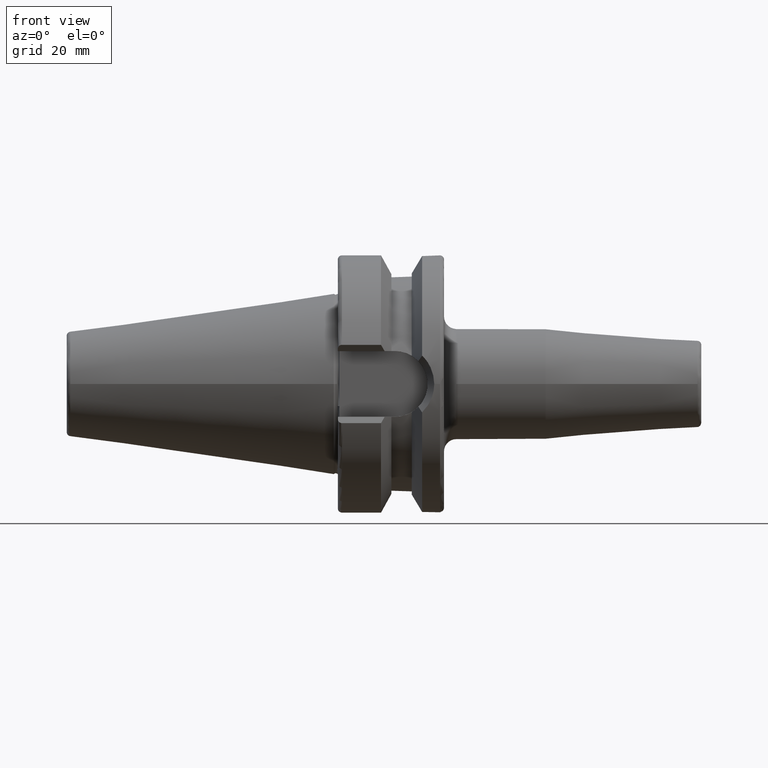
[diagram: clean part render]
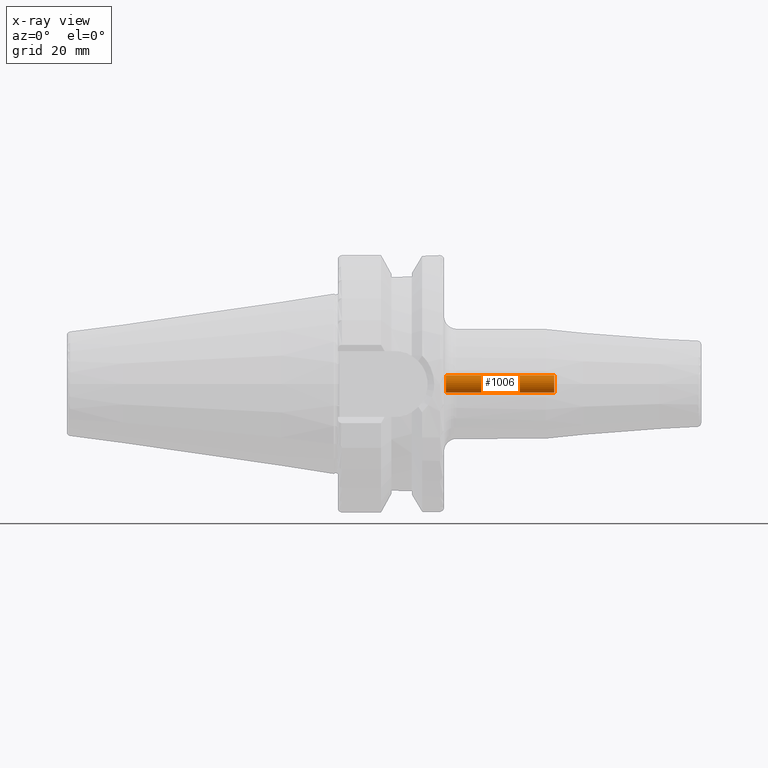
[diagram: x-ray — body ghosted, one internal face saturated and labeled with its STEP entity id]
A machine part, front view, then the same camera in x-ray: the body is ghosted and one INTERNAL B-rep face — a face not visible from any outside direction — is saturated and labeled: STEP entity #1006.
In plain terms, the highlighted cylindrical surface (bore or boss wall) has radius 2.15 mm, axis along (1, 0, 0).
Its self-contained STEP definition (entity closure, byte-faithful):
#64=LINE('',#1560,#122);
#122=VECTOR('',#1262,2.15);
#179=CYLINDRICAL_SURFACE('',#1105,2.15);
#230=FACE_OUTER_BOUND('',#293,.T.);
#293=EDGE_LOOP('',(#709,#710,#711,#712,#713));
#365=CIRCLE('',#1106,2.15);
#366=CIRCLE('',#1107,2.15);
#367=CIRCLE('',#1108,2.15);
#428=VERTEX_POINT('',#1557);
#429=VERTEX_POINT('',#1559);
#430=VERTEX_POINT('',#1561);
#536=EDGE_CURVE('',#428,#428,#365,.T.);
#537=EDGE_CURVE('',#428,#429,#64,.T.);
#538=EDGE_CURVE('',#430,#429,#366,.T.);
#539=EDGE_CURVE('',#429,#430,#367,.T.);
#709=ORIENTED_EDGE('',*,*,#536,.F.);
#710=ORIENTED_EDGE('',*,*,#537,.T.);
#711=ORIENTED_EDGE('',*,*,#538,.F.);
#712=ORIENTED_EDGE('',*,*,#539,.F.);
#713=ORIENTED_EDGE('',*,*,#537,.F.);
#1006=ADVANCED_FACE('',(#230),#179,.F.);
#1105=AXIS2_PLACEMENT_3D('',#1556,#1258,#1259);
#1106=AXIS2_PLACEMENT_3D('',#1558,#1260,#1261);
#1107=AXIS2_PLACEMENT_3D('',#1562,#1263,#1264);
#1108=AXIS2_PLACEMENT_3D('',#1563,#1265,#1266);
#1258=DIRECTION('center_axis',(1.,0.,0.));
#1259=DIRECTION('ref_axis',(0.,0.,-1.));
#1260=DIRECTION('center_axis',(-1.,0.,0.));
#1261=DIRECTION('ref_axis',(0.,0.,-1.));
#1262=DIRECTION('',(-1.,0.,0.));
#1263=DIRECTION('center_axis',(1.,0.,0.));
#1264=DIRECTION('ref_axis',(0.,0.,-1.));
#1265=DIRECTION('center_axis',(1.,0.,0.));
#1266=DIRECTION('ref_axis',(0.,0.,-1.));
#1556=CARTESIAN_POINT('Origin',(-89.135747468849,0.,0.));
#1557=CARTESIAN_POINT('',(54.,2.63299061816681E-16,2.15));
#1558=CARTESIAN_POINT('Origin',(54.,0.,0.));
#1559=CARTESIAN_POINT('',(27.4646030012139,-2.63299061816681E-16,2.15));
#1560=CARTESIAN_POINT('',(-89.135747468849,-2.63299061816681E-16,2.15));
#1561=CARTESIAN_POINT('',(27.4646030012139,-2.63299061816681E-16,-2.15));
#1562=CARTESIAN_POINT('Origin',(27.4646030012139,0.,0.));
#1563=CARTESIAN_POINT('Origin',(27.4646030012139,0.,0.));